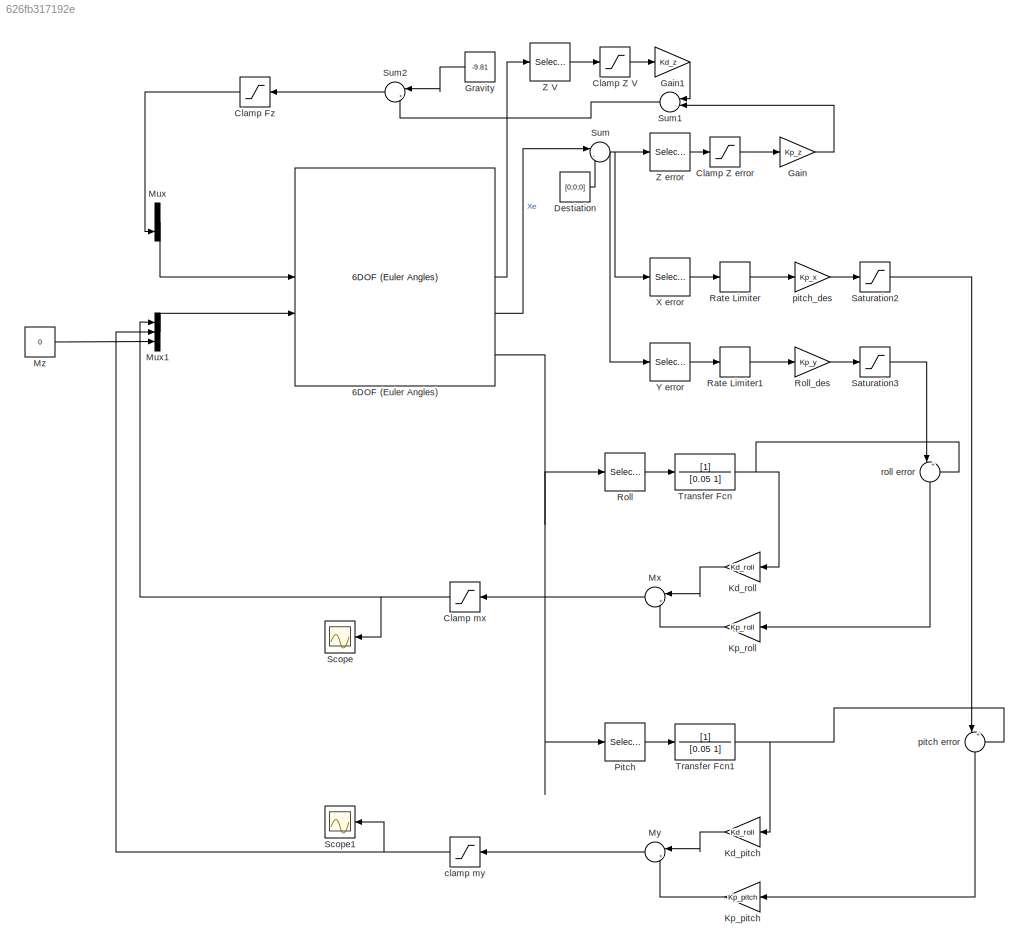
MODEL slx_626fb317192e
KIND model
CONFIG AbsTol = auto
CONFIG EnableMultiTasking = off
CONFIG FixedStep = 0.001
CONFIG MaxStep = auto
CONFIG MinStep = auto
CONFIG RelTol = 1e-3
CONFIG SampleTimeConstraint = Unconstrained
CONFIG SolverName = ode3
CONFIG StartTime = 0.0
CONFIG StopTime = 5.0
WORKSPACE source: mxarray member
WORKSPACE Kd_roll = 0.2
WORKSPACE Kd_x = 2
WORKSPACE Kd_y = 1
WORKSPACE Kd_z = 0.3
WORKSPACE Kp_pitch = 0.5
WORKSPACE Kp_roll = 0.5
WORKSPACE Kp_x = 2
WORKSPACE Kp_y = 2
WORKSPACE Kp_z = -0.9
BLOCK [Reference] 6DOF (Euler Angles)  REF=shared6dof/6DOF (Euler Angles)
  LibrarySourceBlock = aerolib6dof2/6DOF (Euler Angles)
  SourceBlock = shared6dof/6DOF (Euler Angles)
  SourceType = 6DOF EoM (Body Axis)
BLOCK [Saturate] Clamp  Fz
  LowerLimit = mass*9.81*0.8
  NameLocation = top
  UpperLimit = mass*9.81*1.5
BLOCK [Saturate] Clamp Z V
  LowerLimit = -5
  UpperLimit = 5
BLOCK [Saturate] Clamp Z error
  LowerLimit = -5
  UpperLimit = 5
BLOCK [Saturate] Clamp mx
  LowerLimit = -5
  NameLocation = top
  UpperLimit = 5
BLOCK [Constant] Destiation
  Value = [0;0;0]
BLOCK [Gain] Gain
  Gain = Kp_z
BLOCK [Gain] Gain1
  Gain = Kd_z
BLOCK [Constant] Gravity
  NameLocation = top
  Value = -9.81
BLOCK [Gain] Kd_pitch
  Gain = Kd_roll
  NameLocation = top
BLOCK [Gain] Kd_roll
  Gain = Kd_roll
  NameLocation = top
BLOCK [Gain] Kp_pitch
  Gain = Kp_pitch
  NameLocation = top
BLOCK [Gain] Kp_roll
  Gain = Kp_roll
  NameLocation = top
BLOCK [Mux] Mux
  DisplayOption = bar
  Inputs = 3
BLOCK [Mux] Mux1
  DisplayOption = bar
  Inputs = 3
BLOCK [Sum] Mx
  Inputs = |++
  NameLocation = top
BLOCK [Sum] My
  Inputs = |++
  NameLocation = top
BLOCK [Constant] Mz
  Value = 0
BLOCK [Selector] Pitch
  IndexOptions = Index vector (dialog)
  Indices = 2
  InputPortWidth = 3
  OutputSizes = 1
BLOCK [RateLimiter] Rate Limiter
  SampleTimeMode = inherited
BLOCK [RateLimiter] Rate Limiter1
  SampleTimeMode = inherited
BLOCK [Selector] Roll
  IndexOptions = Index vector (dialog)
  Indices = 1
  InputPortWidth = 3
  OutputSizes = 1
BLOCK [Gain] Roll_des
  Gain = Kp_y
BLOCK [Saturate] Saturation2
  LowerLimit = -20
  UpperLimit = 20
BLOCK [Saturate] Saturation3
  LowerLimit = -20
  UpperLimit = 20
BLOCK [Scope] Scope
  Floating = off
  NameLocation = top
  NumInputPorts = 1
  ScopeSpecificationString = Simulink.scopes.TimeScopeBlockCfg('CurrentConfiguration', extmgr.ConfigurationSet(extmgr.Configuration('Core','General UI',true),extmgr.Configuration('Core','Source UI',true),extmgr.Configuration('Sources','WiredSimulink',true),extmgr.Configuration('Visuals','Time Domain',true,'SerializedDisplays',{struct('MinYLimReal','-5.62104','MaxYLimReal','0.58937','YLabelReal','','MinYLimMag','0.00000','MaxY...<+1446ch>
BLOCK [Scope] Scope1
  Floating = off
  NameLocation = top
  NumInputPorts = 1
  ScopeSpecificationString = Simulink.scopes.TimeScopeBlockCfg('CurrentConfiguration', extmgr.ConfigurationSet(extmgr.Configuration('Core','General UI',true),extmgr.Configuration('Core','Source UI',true),extmgr.Configuration('Sources','WiredSimulink',true,'DataLoggingVariableName','ScopeData1'),extmgr.Configuration('Visuals','Time Domain',true,'SerializedDisplays',{struct('MinYLimReal','-6.03712','MaxYLimReal','4.33408','YLab...<+1486ch>
BLOCK [Sum] Sum
  Inputs = |-+
BLOCK [Sum] Sum1
  Inputs = |-+
  NameLocation = top
BLOCK [Sum] Sum2
  Inputs = |++
  NameLocation = top
BLOCK [TransferFcn] Transfer Fcn
  Denominator = [0.05 1]
BLOCK [TransferFcn] Transfer Fcn1
  Denominator = [0.05 1]
BLOCK [Selector] X error
  IndexOptions = Index vector (dialog)
  Indices = 1
  InputPortWidth = 3
  OutputSizes = 1
BLOCK [Selector] Y error
  IndexOptions = Index vector (dialog)
  Indices = 2
  InputPortWidth = 3
  OutputSizes = 1
BLOCK [Selector] Z V
  IndexOptions = Index vector (dialog)
  Indices = 3
  InputPortWidth = 3
  OutputSizes = 1
BLOCK [Selector] Z error
  IndexOptions = Index vector (dialog)
  Indices = 3
  InputPortWidth = 3
  OutputSizes = 1
BLOCK [Saturate] clamp my
  LowerLimit = -5
  NameLocation = top
  UpperLimit = 5
BLOCK [Sum] pitch error
  Inputs = |+-
  NameLocation = left
BLOCK [Gain] pitch_des
  Gain = Kp_x
BLOCK [Sum] roll error
  Inputs = |+-
  NameLocation = left
LINE 6DOF (Euler Angles):1 -> Z V:1
LINE 6DOF (Euler Angles):2 -> Sum:1
NET 6DOF (Euler Angles):6 -> Pitch:1, Roll:1
LINE Clamp  Fz:1 -> Mux:3
LINE Clamp Z V:1 -> Gain1:1
LINE Clamp Z error:1 -> Gain:1
NET Clamp mx:1 -> Mux1:1, Scope:1
LINE Destiation:1 -> Sum:2
LINE Gain1:1 -> Sum1:1
LINE Gain:1 -> Sum1:2
LINE Gravity:1 -> Sum2:1
LINE Kd_pitch:1 -> My:1
LINE Kd_roll:1 -> Mx:1
LINE Kp_pitch:1 -> My:2
LINE Kp_roll:1 -> Mx:2
LINE Mux1:1 -> 6DOF (Euler Angles):2
LINE Mux:1 -> 6DOF (Euler Angles):1
LINE Mx:1 -> Clamp mx:1
LINE My:1 -> clamp my:1
LINE Mz:1 -> Mux1:3
LINE Pitch:1 -> Transfer Fcn1:1
LINE Rate Limiter1:1 -> Roll_des:1
LINE Rate Limiter:1 -> pitch_des:1
LINE Roll:1 -> Transfer Fcn:1
LINE Roll_des:1 -> Saturation3:1
LINE Saturation2:1 -> pitch error:1
LINE Saturation3:1 -> roll error:1
LINE Sum1:1 -> Sum2:2
LINE Sum2:1 -> Clamp  Fz:1
NET Sum:1 -> X error:1, Y error:1, Z error:1
NET Transfer Fcn1:1 -> Kd_pitch:1, pitch error:2
NET Transfer Fcn:1 -> Kd_roll:1, roll error:2
LINE X error:1 -> Rate Limiter:1
LINE Y error:1 -> Rate Limiter1:1
LINE Z V:1 -> Clamp Z V:1
LINE Z error:1 -> Clamp Z error:1
NET clamp my:1 -> Mux1:2, Scope1:1
LINE pitch error:1 -> Kp_pitch:1
LINE pitch_des:1 -> Saturation2:1
LINE roll error:1 -> Kp_roll:1
note: NET lines group one-source signal fan-out (src -> all destinations, sorted); 1:1 wires keep LINE
